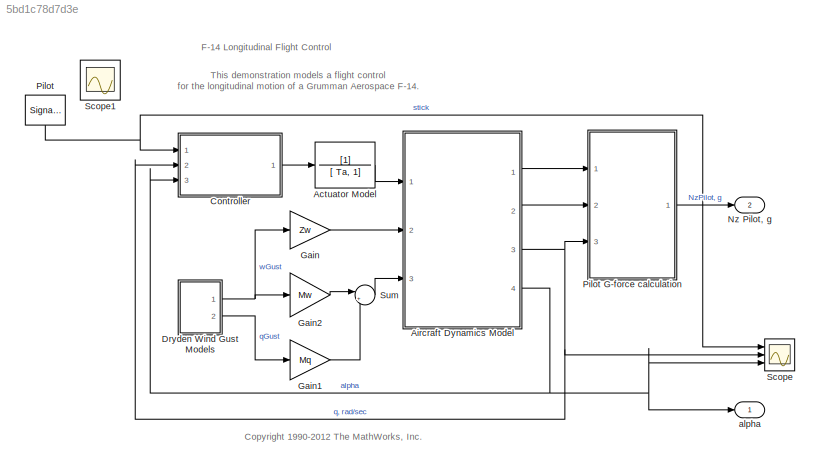
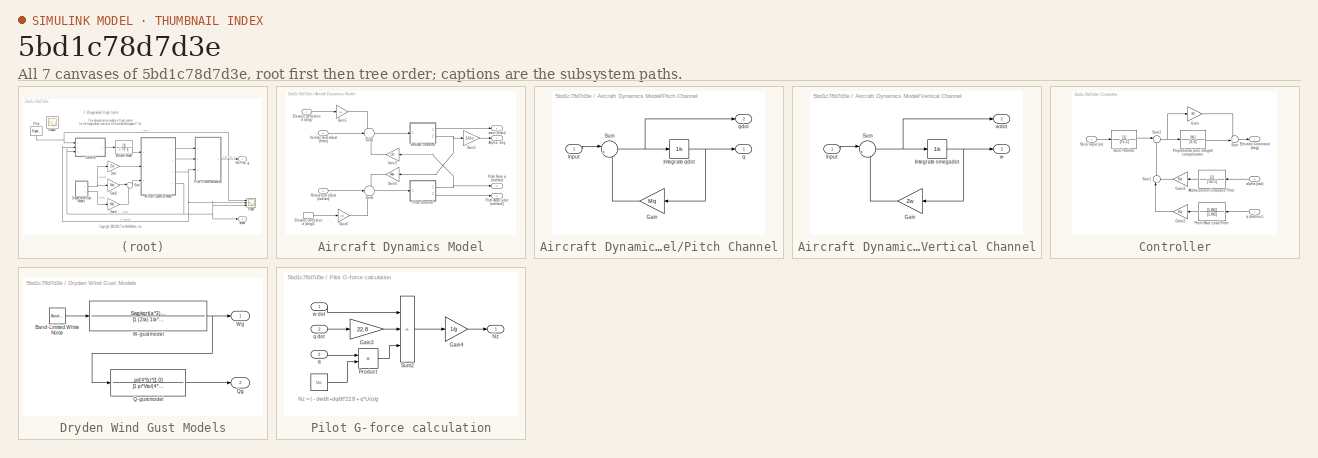
[diagram: thumbnail index - all 7 canvases of the model, root first then tree order]
MODEL slx_5bd1c78d7d3e
KIND model
CONFIG AbsTol = 1e-6
CONFIG EnableMultiTasking = off
CONFIG FixedStep = auto
CONFIG MaxStep = auto
CONFIG MinStep = auto
CONFIG RelTol = 1e-4
CONFIG SampleTimeConstraint = Unconstrained
CONFIG Solver = ode45
CONFIG SolverName = ode45
CONFIG StartTime = 0.0
CONFIG StopTime = 60
WORKSPACE source: MATLAB code (in-file) + mxarray member
WORKSPACE code: f14dat
WORKSPACE Beta = 426.4352
WORKSPACE Gamma = 0.01
WORKSPACE Ka = 0.677
WORKSPACE Kf = -1.746
WORKSPACE Ki = -3.864
WORKSPACE Kq = 0.8156
WORKSPACE Md = -6.8847
WORKSPACE Mq = -0.6571
WORKSPACE Mw = -0.00592
WORKSPACE Sa = 0.005236
WORKSPACE Swg = 3
WORKSPACE Ta = 0.05
WORKSPACE Tal = 0.3959
WORKSPACE Ts = 0.1
WORKSPACE Uo = 689.4
WORKSPACE Vto = 690.4
WORKSPACE W1 = 2.971
WORKSPACE W2 = 4.144
WORKSPACE Wa = 10
WORKSPACE Zd = -63.9979
WORKSPACE Zw = -0.6385
WORKSPACE a = 2.5348
WORKSPACE b = 64.13
WORKSPACE cmdgain = 0.0349095447273
WORKSPACE g = 32.2
BLOCK [TransferFcn] Actuator Model
  Denominator = [ Ta, 1]
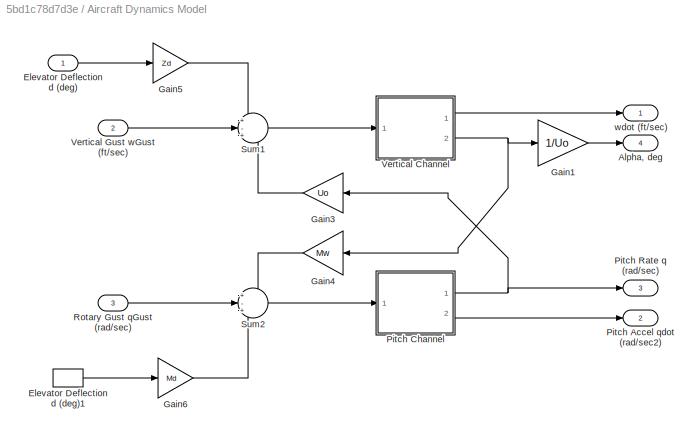
BLOCK [SubSystem] Aircraft Dynamics Model
  Ports = [3, 4]
  RequestExecContextInheritance = off
BLOCK [Outport] Aircraft Dynamics Model/Alpha, deg
  InitialOutput = 0
  Port = 4
  VectorParamsAs1DForOutWhenUnconnected = off
BLOCK [Inport] Aircraft Dynamics Model/Elevator Deflection d (deg)
BLOCK [InportShadow] Aircraft Dynamics Model/Elevator Deflection d (deg)1
BLOCK [Gain] Aircraft Dynamics Model/Gain1
  Gain = 1/Uo
  OutDataTypeStr = Inherit: Same as input
  ParamDataTypeStr = Inherit: Same as input
  SaturateOnIntegerOverflow = on
BLOCK [Gain] Aircraft Dynamics Model/Gain3
  Gain = Uo
  OutDataTypeStr = Inherit: Same as input
  ParamDataTypeStr = Inherit: Same as input
  SaturateOnIntegerOverflow = on
BLOCK [Gain] Aircraft Dynamics Model/Gain4
  Gain = Mw
  OutDataTypeStr = Inherit: Same as input
  ParamDataTypeStr = Inherit: Same as input
  SaturateOnIntegerOverflow = on
BLOCK [Gain] Aircraft Dynamics Model/Gain5
  Gain = Zd
  OutDataTypeStr = Inherit: Same as input
  ParamDataTypeStr = Inherit: Same as input
  SaturateOnIntegerOverflow = on
BLOCK [Gain] Aircraft Dynamics Model/Gain6
  Gain = Md
  OutDataTypeStr = Inherit: Same as input
  ParamDataTypeStr = Inherit: Same as input
  SaturateOnIntegerOverflow = on
BLOCK [Outport] Aircraft Dynamics Model/Pitch Accel qdot (rad//sec2)
  InitialOutput = 0
  Port = 2
  VectorParamsAs1DForOutWhenUnconnected = off
BLOCK [SubSystem] Aircraft Dynamics Model/Pitch Channel
  Ports = [1, 2]
  RequestExecContextInheritance = off
BLOCK [Gain] Aircraft Dynamics Model/Pitch Channel/Gain
  Gain = Mq
  OutDataTypeStr = Inherit: Same as input
  ParamDataTypeStr = Inherit: Same as input
  SaturateOnIntegerOverflow = on
BLOCK [Inport] Aircraft Dynamics Model/Pitch Channel/Input
BLOCK [Integrator] Aircraft Dynamics Model/Pitch Channel/Integrate qdot
  Ports = [1, 1]
BLOCK [Sum] Aircraft Dynamics Model/Pitch Channel/Sum
  InputSameDT = on
  Inputs = |++
  OutDataTypeStr = Inherit: Same as first input
  Ports = [2, 1]
  SaturateOnIntegerOverflow = on
BLOCK [Outport] Aircraft Dynamics Model/Pitch Channel/q
  InitialOutput = 0
  VectorParamsAs1DForOutWhenUnconnected = off
BLOCK [Outport] Aircraft Dynamics Model/Pitch Channel/qdot
  InitialOutput = 0
  Port = 2
  VectorParamsAs1DForOutWhenUnconnected = off
BLOCK [Outport] Aircraft Dynamics Model/Pitch Rate q (rad//sec)
  InitialOutput = 0
  NameLocation = top
  Port = 3
  VectorParamsAs1DForOutWhenUnconnected = off
BLOCK [Inport] Aircraft Dynamics Model/Rotary Gust qGust (rad//sec)
  Port = 3
BLOCK [Sum] Aircraft Dynamics Model/Sum1
  InputSameDT = on
  Inputs = +-+
  OutDataTypeStr = Inherit: Same as first input
  Ports = [3, 1]
  SaturateOnIntegerOverflow = on
BLOCK [Sum] Aircraft Dynamics Model/Sum2
  InputSameDT = on
  Inputs = +-+
  OutDataTypeStr = Inherit: Same as first input
  Ports = [3, 1]
  SaturateOnIntegerOverflow = on
BLOCK [SubSystem] Aircraft Dynamics Model/Vertical Channel
  Ports = [1, 2]
  RequestExecContextInheritance = off
BLOCK [Gain] Aircraft Dynamics Model/Vertical Channel/Gain
  Gain = Zw
  OutDataTypeStr = Inherit: Same as input
  ParamDataTypeStr = Inherit: Same as input
  SaturateOnIntegerOverflow = on
BLOCK [Inport] Aircraft Dynamics Model/Vertical Channel/Input
BLOCK [Integrator] Aircraft Dynamics Model/Vertical Channel/Integrate omegadot
  Ports = [1, 1]
BLOCK [Sum] Aircraft Dynamics Model/Vertical Channel/Sum
  InputSameDT = on
  Inputs = |++
  OutDataTypeStr = Inherit: Same as first input
  Ports = [2, 1]
  SaturateOnIntegerOverflow = on
BLOCK [Outport] Aircraft Dynamics Model/Vertical Channel/w
  InitialOutput = 0
  Port = 2
  VectorParamsAs1DForOutWhenUnconnected = off
BLOCK [Outport] Aircraft Dynamics Model/Vertical Channel/wdot
  InitialOutput = 0
  VectorParamsAs1DForOutWhenUnconnected = off
BLOCK [Inport] Aircraft Dynamics Model/Vertical Gust wGust (ft//sec)
  Port = 2
BLOCK [Outport] Aircraft Dynamics Model/wdot (ft//sec)
  InitialOutput = 0
  NameLocation = top
  VectorParamsAs1DForOutWhenUnconnected = off
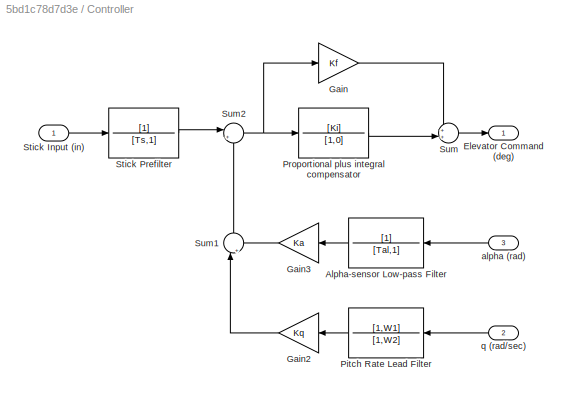
BLOCK [SubSystem] Controller
  Ports = [3, 1]
  RequestExecContextInheritance = off
BLOCK [TransferFcn] Controller/Alpha-sensor Low-pass Filter
  Denominator = [Tal,1]
BLOCK [Outport] Controller/Elevator Command (deg)
  InitialOutput = 0
  VectorParamsAs1DForOutWhenUnconnected = off
BLOCK [Gain] Controller/Gain
  Gain = Kf
  OutDataTypeStr = Inherit: Same as input
  ParamDataTypeStr = Inherit: Same as input
  SaturateOnIntegerOverflow = on
BLOCK [Gain] Controller/Gain2
  Gain = Kq
  OutDataTypeStr = Inherit: Same as input
  ParamDataTypeStr = Inherit: Same as input
  SaturateOnIntegerOverflow = on
BLOCK [Gain] Controller/Gain3
  Gain = Ka
  OutDataTypeStr = Inherit: Same as input
  ParamDataTypeStr = Inherit: Same as input
  SaturateOnIntegerOverflow = on
BLOCK [TransferFcn] Controller/Pitch Rate Lead Filter
  Denominator = [1,W2]
  Numerator = [1,W1]
BLOCK [TransferFcn] Controller/Proportional plus integral compensator
  Denominator = [1,0]
  Numerator = [Ki]
BLOCK [Inport] Controller/Stick Input (in)
BLOCK [TransferFcn] Controller/Stick Prefilter
  Denominator = [Ts,1]
BLOCK [Sum] Controller/Sum
  InputSameDT = on
  Inputs = ++|
  OutDataTypeStr = Inherit: Same as first input
  Ports = [2, 1]
  SaturateOnIntegerOverflow = on
BLOCK [Sum] Controller/Sum1
  InputSameDT = on
  Inputs = |++
  NameLocation = right
  OutDataTypeStr = Inherit: Same as first input
  Ports = [2, 1]
  SaturateOnIntegerOverflow = on
BLOCK [Sum] Controller/Sum2
  InputSameDT = on
  Inputs = |+-
  OutDataTypeStr = Inherit: Same as first input
  Ports = [2, 1]
  SaturateOnIntegerOverflow = on
BLOCK [Inport] Controller/alpha (rad)
  Port = 3
BLOCK [Inport] Controller/q (rad//sec)
  Port = 2
BLOCK [SubSystem] Dryden Wind Gust Models
  Ports = [0, 2]
  RequestExecContextInheritance = off
BLOCK [Reference] Dryden Wind Gust Models/Band-Limited White Noise  REF=simulink/Sources/Band-Limited
White Noise
  Ports = [0, 1]
  SourceBlock = simulink/Sources/Band-Limited\nWhite Noise
  SourceProductBaseCode = SL
  SourceType = Band-Limited White Noise.
BLOCK [TransferFcn] Dryden Wind Gust Models/Q-gust model
  Denominator = [1 pi*Vto/(4*b)]
  Numerator = pi/(4*b)*[1 0]
BLOCK [Outport] Dryden Wind Gust Models/Qg
  InitialOutput = 0
  Port = 2
  VectorParamsAs1DForOutWhenUnconnected = off
BLOCK [TransferFcn] Dryden Wind Gust Models/W-gust model
  Denominator = [1 (2/a) 1/a^2]
  Numerator = Swg/sqrt(a^3)*[sqrt(3)*a,1]
BLOCK [Outport] Dryden Wind Gust Models/Wg
  InitialOutput = 0
  VectorParamsAs1DForOutWhenUnconnected = off
BLOCK [Gain] Gain
  Gain = Zw
  OutDataTypeStr = Inherit: Same as input
  ParamDataTypeStr = Inherit: Same as input
  SaturateOnIntegerOverflow = on
BLOCK [Gain] Gain1
  Gain = Mq
  OutDataTypeStr = Inherit: Same as input
  ParamDataTypeStr = Inherit: Same as input
  SaturateOnIntegerOverflow = on
BLOCK [Gain] Gain2
  Gain = Mw
  OutDataTypeStr = Inherit: Same as input
  ParamDataTypeStr = Inherit: Same as input
  SaturateOnIntegerOverflow = on
BLOCK [Outport] Nz Pilot, g
  InitialOutput = 0
  Port = 2
  VectorParamsAs1DForOutWhenUnconnected = off
BLOCK [SignalGenerator] Pilot
  Amplitude = 0.5
  Frequency = 0.500000
  NameLocation = left
  Ports = [0, 1]
  Units = rad/sec
  WaveForm = square
BLOCK [SubSystem] Pilot G-force calculation
  Ports = [3, 1]
  RequestExecContextInheritance = off
BLOCK [Constant] Pilot G-force calculation/ 
  Value = Uo
BLOCK [Gain] Pilot G-force calculation/Gain3
  Gain = 22.8
  OutDataTypeStr = Inherit: Same as input
  ParamDataTypeStr = Inherit: Same as input
  SaturateOnIntegerOverflow = on
BLOCK [Gain] Pilot G-force calculation/Gain4
  Gain = 1/g
  OutDataTypeStr = Inherit: Same as input
  ParamDataTypeStr = Inherit: Same as input
  SaturateOnIntegerOverflow = on
BLOCK [Outport] Pilot G-force calculation/Nz
  InitialOutput = 0
  VectorParamsAs1DForOutWhenUnconnected = off
BLOCK [Product] Pilot G-force calculation/Product
  InputSameDT = on
  OutDataTypeStr = Inherit: Same as first input
  Ports = [2, 1]
  RndMeth = Zero
  SaturateOnIntegerOverflow = on
BLOCK [Sum] Pilot G-force calculation/Sum2
  IconShape = rectangular
  InputSameDT = on
  Inputs = -++
  OutDataTypeStr = Inherit: Same as first input
  Ports = [3, 1]
  SaturateOnIntegerOverflow = on
BLOCK [Inport] Pilot G-force calculation/q
  Port = 3
BLOCK [Inport] Pilot G-force calculation/q dot
  Port = 2
BLOCK [Inport] Pilot G-force calculation/w dot
BLOCK [Scope] Scope
  Floating = off
  NumInputPorts = 3
  Ports = [3]
  ScopeSpecificationString = Simulink.scopes.TimeScopeBlockCfg('CurrentConfiguration', extmgr.ConfigurationSet(extmgr.Configuration('Core','General UI',true),extmgr.Configuration('Core','Source UI',true),extmgr.Configuration('Sources','WiredSimulink',true,'DataLoggingVariableName','ScopeData1'),extmgr.Configuration('Visuals','Time Domain',true,'SerializedDisplays',{struct('MinYLimReal','-0.00693','MaxYLimReal','0.00791','YLab...<+1410ch>
BLOCK [Scope] Scope1
  Floating = off
  IOType = viewer
  NumInputPorts = 1
  Ports = []
  ScopeSpecificationString = Simulink.scopes.TimeScopeBlockCfg('CurrentConfiguration', extmgr.ConfigurationSet(extmgr.Configuration('Core','General UI',true),extmgr.Configuration('Core','Source UI',true),extmgr.Configuration('Sources','WiredSimulink',true,'DataLoggingMaxPoints','7500','DataLoggingLimitDataPoints',true,'DataLoggingSaveFormat','Array','DataLoggingDecimation','1','DataLoggingDecimateData',true),extmgr.Configurat...<+3048ch>
BLOCK [Sum] Sum
  InputSameDT = on
  Inputs = |++
  OutDataTypeStr = Inherit: Same as first input
  Ports = [2, 1]
  SaturateOnIntegerOverflow = on
BLOCK [Outport] alpha
  InitialOutput = 0
  VectorParamsAs1DForOutWhenUnconnected = off
ANNOTATION (root): <copyright redacted>
ANNOTATION (root): F-14 Longitudinal Flight Control
ANNOTATION (root): This demonstration models a flight control for the longitudinal motion of a Grumman Aerospace F-14.
ANNOTATION Pilot G-force calculation: Nz = ( - dw/dt +dq/dt*22.8 + q*Uo)/g
LINE Actuator Model:1 -> Aircraft Dynamics Model:1
LINE Aircraft Dynamics Model/Elevator Deflection d (deg)1:1 -> Aircraft Dynamics Model/Gain6:1
LINE Aircraft Dynamics Model/Elevator Deflection d (deg):1 -> Aircraft Dynamics Model/Gain5:1
LINE Aircraft Dynamics Model/Gain1:1 -> Aircraft Dynamics Model/Alpha, deg:1
LINE Aircraft Dynamics Model/Gain3:1 -> Aircraft Dynamics Model/Sum1:3
LINE Aircraft Dynamics Model/Gain4:1 -> Aircraft Dynamics Model/Sum2:1
LINE Aircraft Dynamics Model/Gain5:1 -> Aircraft Dynamics Model/Sum1:1
LINE Aircraft Dynamics Model/Gain6:1 -> Aircraft Dynamics Model/Sum2:3
LINE Aircraft Dynamics Model/Pitch Channel/Gain:1 -> Aircraft Dynamics Model/Pitch Channel/Sum:2
LINE Aircraft Dynamics Model/Pitch Channel/Input:1 -> Aircraft Dynamics Model/Pitch Channel/Sum:1
NET Aircraft Dynamics Model/Pitch Channel/Integrate qdot:1 -> Aircraft Dynamics Model/Pitch Channel/Gain:1, Aircraft Dynamics Model/Pitch Channel/q:1
NET Aircraft Dynamics Model/Pitch Channel/Sum:1 -> Aircraft Dynamics Model/Pitch Channel/Integrate qdot:1, Aircraft Dynamics Model/Pitch Channel/qdot:1
NET Aircraft Dynamics Model/Pitch Channel:1 -> Aircraft Dynamics Model/Gain3:1, Aircraft Dynamics Model/Pitch Rate q (rad//sec):1
LINE Aircraft Dynamics Model/Pitch Channel:2 -> Aircraft Dynamics Model/Pitch Accel qdot (rad//sec2):1
LINE Aircraft Dynamics Model/Rotary Gust qGust (rad//sec):1 -> Aircraft Dynamics Model/Sum2:2
LINE Aircraft Dynamics Model/Sum1:1 -> Aircraft Dynamics Model/Vertical Channel:1
LINE Aircraft Dynamics Model/Sum2:1 -> Aircraft Dynamics Model/Pitch Channel:1
LINE Aircraft Dynamics Model/Vertical Channel/Gain:1 -> Aircraft Dynamics Model/Vertical Channel/Sum:2
LINE Aircraft Dynamics Model/Vertical Channel/Input:1 -> Aircraft Dynamics Model/Vertical Channel/Sum:1
NET Aircraft Dynamics Model/Vertical Channel/Integrate omegadot:1 -> Aircraft Dynamics Model/Vertical Channel/Gain:1, Aircraft Dynamics Model/Vertical Channel/w:1
NET Aircraft Dynamics Model/Vertical Channel/Sum:1 -> Aircraft Dynamics Model/Vertical Channel/Integrate omegadot:1, Aircraft Dynamics Model/Vertical Channel/wdot:1
LINE Aircraft Dynamics Model/Vertical Channel:1 -> Aircraft Dynamics Model/wdot (ft//sec):1
NET Aircraft Dynamics Model/Vertical Channel:2 -> Aircraft Dynamics Model/Gain1:1, Aircraft Dynamics Model/Gain4:1
LINE Aircraft Dynamics Model/Vertical Gust wGust (ft//sec):1 -> Aircraft Dynamics Model/Sum1:2
LINE Aircraft Dynamics Model:1 -> Pilot G-force calculation:1
LINE Aircraft Dynamics Model:2 -> Pilot G-force calculation:2
NET Aircraft Dynamics Model:3 -> Controller:2, Pilot G-force calculation:3, Scope:2
NET Aircraft Dynamics Model:4 -> Controller:3, Scope:3, alpha:1
LINE Controller/Alpha-sensor Low-pass Filter:1 -> Controller/Gain3:1
LINE Controller/Gain2:1 -> Controller/Sum1:1
LINE Controller/Gain3:1 -> Controller/Sum1:2
LINE Controller/Gain:1 -> Controller/Sum:1
LINE Controller/Pitch Rate Lead Filter:1 -> Controller/Gain2:1
LINE Controller/Proportional plus integral compensator:1 -> Controller/Sum:2
LINE Controller/Stick Input (in):1 -> Controller/Stick Prefilter:1
LINE Controller/Stick Prefilter:1 -> Controller/Sum2:1
LINE Controller/Sum1:1 -> Controller/Sum2:2
NET Controller/Sum2:1 -> Controller/Gain:1, Controller/Proportional plus integral compensator:1
LINE Controller/Sum:1 -> Controller/Elevator Command (deg):1
LINE Controller/alpha (rad):1 -> Controller/Alpha-sensor Low-pass Filter:1
LINE Controller/q (rad//sec):1 -> Controller/Pitch Rate Lead Filter:1
LINE Controller:1 -> Actuator Model:1
LINE Dryden Wind Gust Models/Band-Limited White Noise:1 -> Dryden Wind Gust Models/W-gust model:1
LINE Dryden Wind Gust Models/Q-gust model:1 -> Dryden Wind Gust Models/Qg:1
NET Dryden Wind Gust Models/W-gust model:1 -> Dryden Wind Gust Models/Q-gust model:1, Dryden Wind Gust Models/Wg:1
NET Dryden Wind Gust Models:1 -> Gain2:1, Gain:1
LINE Dryden Wind Gust Models:2 -> Gain1:1
LINE Gain1:1 -> Sum:2
LINE Gain2:1 -> Sum:1
LINE Gain:1 -> Aircraft Dynamics Model:2
LINE Pilot G-force calculation/ :1 -> Pilot G-force calculation/Product:2
LINE Pilot G-force calculation/Gain3:1 -> Pilot G-force calculation/Sum2:2
LINE Pilot G-force calculation/Gain4:1 -> Pilot G-force calculation/Nz:1
LINE Pilot G-force calculation/Product:1 -> Pilot G-force calculation/Sum2:3
LINE Pilot G-force calculation/Sum2:1 -> Pilot G-force calculation/Gain4:1
LINE Pilot G-force calculation/q dot:1 -> Pilot G-force calculation/Gain3:1
LINE Pilot G-force calculation/q:1 -> Pilot G-force calculation/Product:1
LINE Pilot G-force calculation/w dot:1 -> Pilot G-force calculation/Sum2:1
LINE Pilot G-force calculation:1 -> Nz Pilot, g:1
NET Pilot:1 -> Controller:1, Scope:1
LINE Sum:1 -> Aircraft Dynamics Model:3
note: NET lines group one-source signal fan-out (src -> all destinations, sorted); 1:1 wires keep LINE
